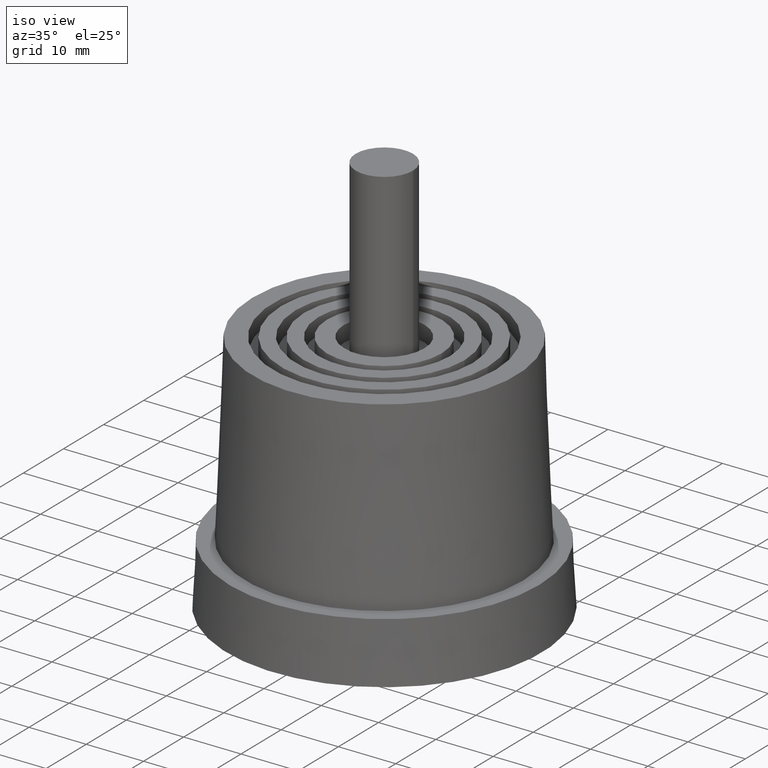
[diagram: clean part render]
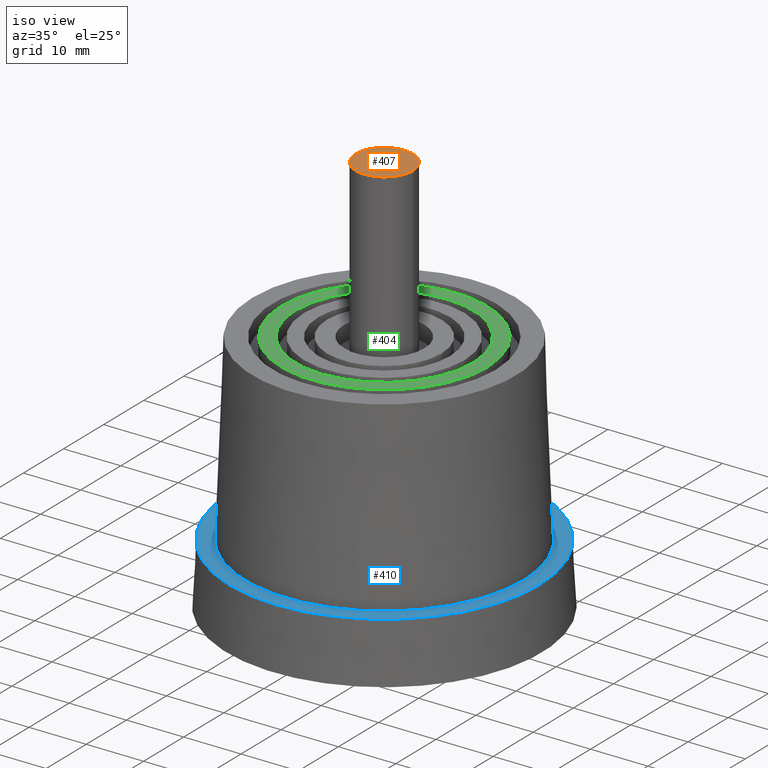
[diagram: same view with three faces highlighted in distinct colors, each labeled with its STEP entity id]
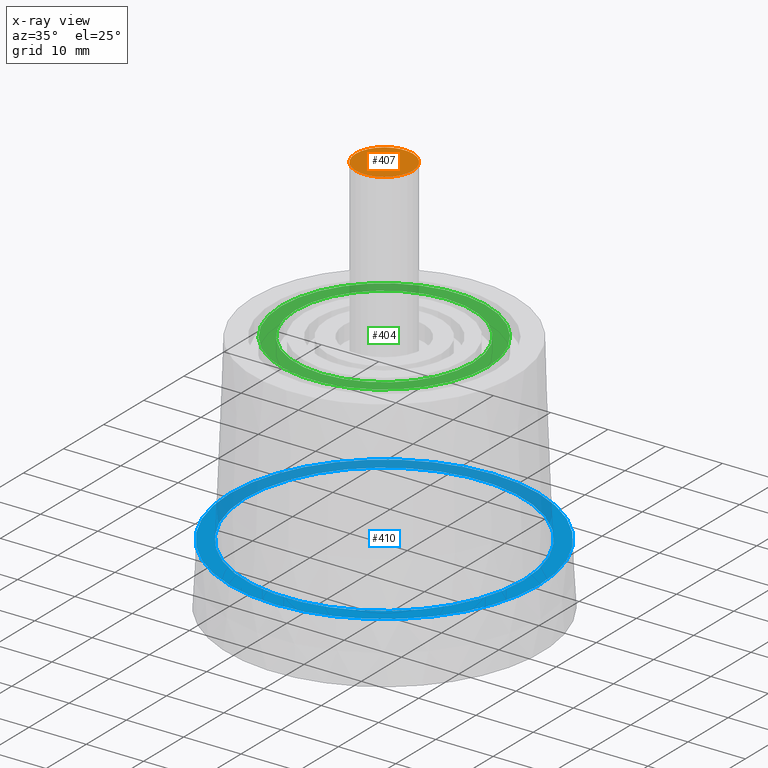
[diagram: x-ray of the same camera — body ghosted, the three highlighted faces saturated]
A machine part, iso view with three faces highlighted in distinct colors.
The next image is the same camera in x-ray (body ghosted, the three faces saturated) — at least one of them is partly hidden behind the body in this view.
Their STEP definitions:

[orange] entity #407 — the highlighted planar face has unit normal (0, 0, 1).
#32=PLANE('',#480);
#102=FACE_OUTER_BOUND('',#169,.T.);
#169=EDGE_LOOP('',(#349));
#213=CIRCLE('',#479,5.);
#249=VERTEX_POINT('',#734);
#285=EDGE_CURVE('',#249,#249,#213,.T.);
#349=ORIENTED_EDGE('',*,*,#285,.T.);
#407=ADVANCED_FACE('',(#102),#32,.T.);
#479=AXIS2_PLACEMENT_3D('',#735,#618,#619);
#480=AXIS2_PLACEMENT_3D('',#736,#620,#621);
#618=DIRECTION('center_axis',(0.,0.,1.));
#619=DIRECTION('ref_axis',(-1.,0.,0.));
#620=DIRECTION('center_axis',(0.,0.,1.));
#621=DIRECTION('ref_axis',(1.,0.,0.));
#734=CARTESIAN_POINT('',(5.,6.12323399573677E-16,70.));
#735=CARTESIAN_POINT('Origin',(0.,0.,70.));
#736=CARTESIAN_POINT('Origin',(-2.36064120735332E-16,9.25185853854297E-17,
70.));

[blue] entity #410 — the highlighted planar face has unit normal (0, 0, -1).
#34=PLANE('',#484);
#68=FACE_BOUND('',#175,.T.);
#105=FACE_OUTER_BOUND('',#174,.T.);
#174=EDGE_LOOP('',(#354));
#175=EDGE_LOOP('',(#355));
#214=CIRCLE('',#483,24.25);
#215=CIRCLE('',#485,27.);
#250=VERTEX_POINT('',#739);
#251=VERTEX_POINT('',#742);
#286=EDGE_CURVE('',#250,#250,#214,.T.);
#287=EDGE_CURVE('',#251,#251,#215,.T.);
#354=ORIENTED_EDGE('',*,*,#287,.F.);
#355=ORIENTED_EDGE('',*,*,#286,.T.);
#410=ADVANCED_FACE('',(#105,#68),#34,.F.);
#483=AXIS2_PLACEMENT_3D('',#740,#626,#627);
#484=AXIS2_PLACEMENT_3D('',#741,#628,#629);
#485=AXIS2_PLACEMENT_3D('',#743,#630,#631);
#626=DIRECTION('center_axis',(0.,0.,-1.));
#627=DIRECTION('ref_axis',(-1.,0.,0.));
#628=DIRECTION('center_axis',(0.,0.,-1.));
#629=DIRECTION('ref_axis',(-1.,0.,0.));
#630=DIRECTION('center_axis',(0.,0.,-1.));
#631=DIRECTION('ref_axis',(-1.,0.,0.));
#739=CARTESIAN_POINT('',(-24.25,0.,10.5));
#740=CARTESIAN_POINT('Origin',(0.,0.,10.5));
#741=CARTESIAN_POINT('Origin',(0.,0.,10.5));
#742=CARTESIAN_POINT('',(-27.,0.,10.5));
#743=CARTESIAN_POINT('Origin',(0.,0.,10.5));

[green] entity #404 — the highlighted planar face has unit normal (0, 0, -1).
#30=PLANE('',#476);
#63=FACE_BOUND('',#164,.T.);
#99=FACE_OUTER_BOUND('',#163,.T.);
#163=EDGE_LOOP('',(#343));
#164=EDGE_LOOP('',(#344));
#207=CIRCLE('',#465,15.5);
#209=CIRCLE('',#469,18.);
#243=VERTEX_POINT('',#714);
#245=VERTEX_POINT('',#720);
#279=EDGE_CURVE('',#243,#243,#207,.T.);
#281=EDGE_CURVE('',#245,#245,#209,.T.);
#343=ORIENTED_EDGE('',*,*,#281,.T.);
#344=ORIENTED_EDGE('',*,*,#279,.T.);
#404=ADVANCED_FACE('',(#99,#63),#30,.F.);
#465=AXIS2_PLACEMENT_3D('',#715,#590,#591);
#469=AXIS2_PLACEMENT_3D('',#721,#598,#599);
#476=AXIS2_PLACEMENT_3D('',#731,#612,#613);
#590=DIRECTION('center_axis',(0.,0.,-1.));
#591=DIRECTION('ref_axis',(-1.,0.,0.));
#598=DIRECTION('center_axis',(0.,0.,1.));
#599=DIRECTION('ref_axis',(-1.,0.,0.));
#612=DIRECTION('center_axis',(0.,0.,-1.));
#613=DIRECTION('ref_axis',(-1.,0.,0.));
#714=CARTESIAN_POINT('',(15.5,1.8982025386784E-15,42.5));
#715=CARTESIAN_POINT('Origin',(0.,0.,42.5));
#720=CARTESIAN_POINT('',(18.,2.20436423846524E-15,42.5));
#721=CARTESIAN_POINT('Origin',(0.,0.,42.5));
#731=CARTESIAN_POINT('Origin',(0.,0.,42.5));